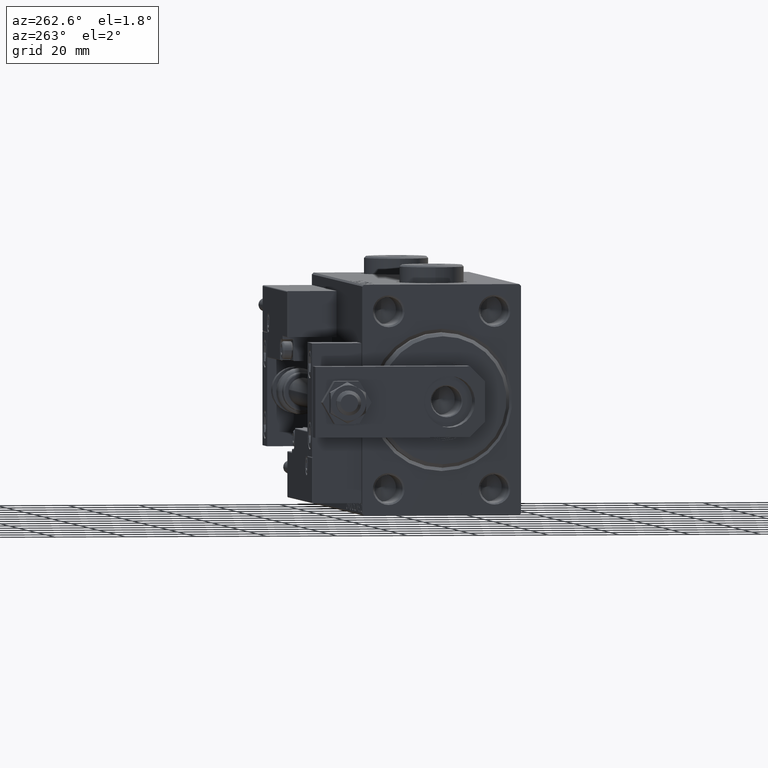
[diagram: clean part render]
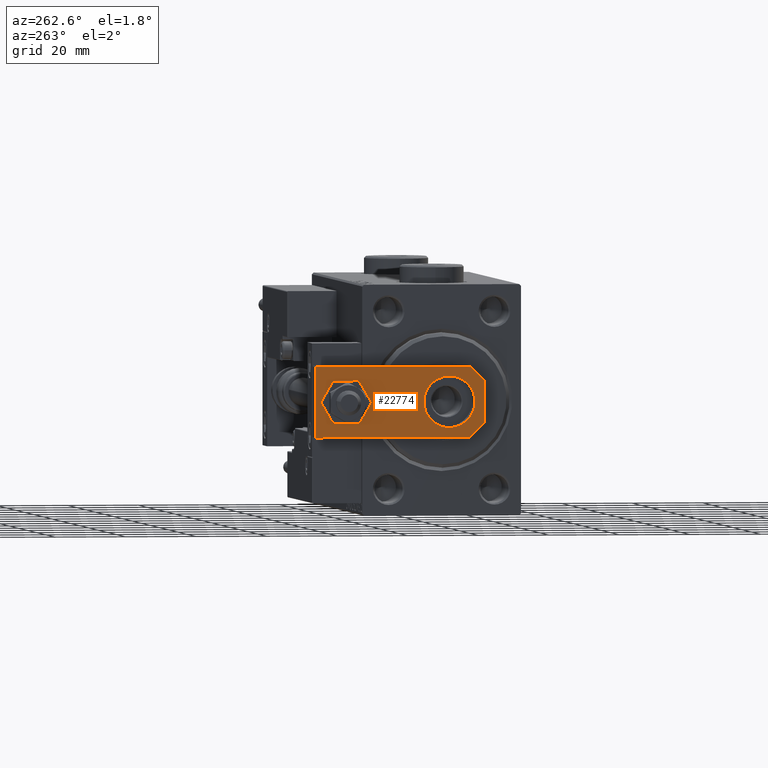
[diagram: same view with one face highlighted and labeled with its STEP entity id]
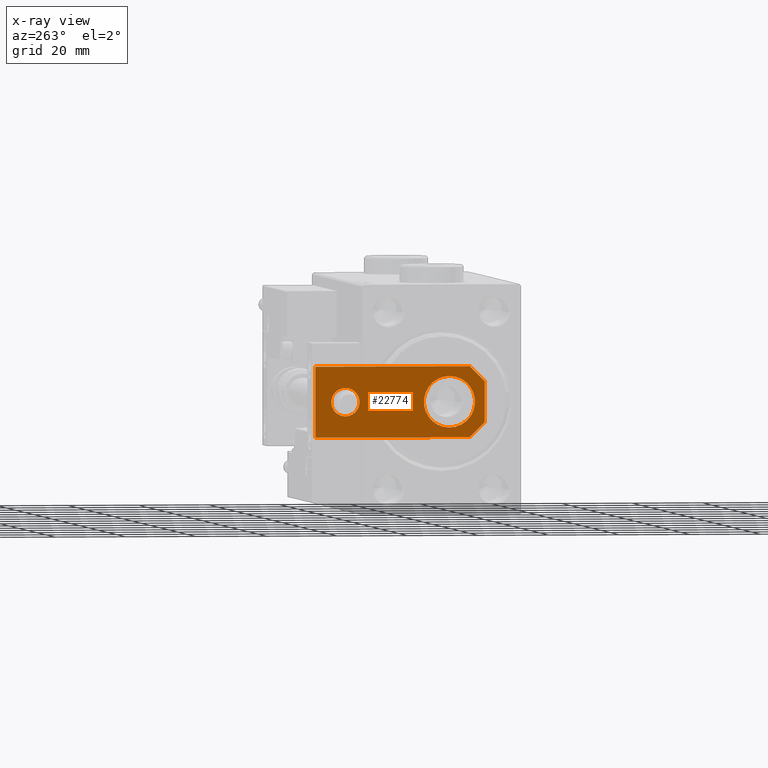
[diagram: x-ray of the same camera — body ghosted, the highlighted face saturated]
A machine part, auxiliary view. The second image highlights one B-rep face of the part: STEP entity #22774.
The next image is the same camera in x-ray: the body ghosted, the highlighted face saturated — about 0% of this face is hidden behind the body in this view.
In plain terms, the highlighted planar face has unit normal (-1, -0, 0).
Its self-contained STEP definition (entity closure, byte-faithful):
#97 = DIRECTION ( 'NONE',  ( 1.000000000000000000, 0.000000000000000000, 0.000000000000000000 ) ) ;
#1003 = ORIENTED_EDGE ( 'NONE', *, *, #10762, .F. ) ;
#2107 = CARTESIAN_POINT ( 'NONE',  ( -10.00000000000000000, 48.00000000000000000, 6.000000000000000000 ) ) ;
#3769 = CARTESIAN_POINT ( 'NONE',  ( -7.250000000000000000, 10.00000000000000178, 6.000000000000000000 ) ) ;
#3913 = VERTEX_POINT ( 'NONE', #45199 ) ;
#3920 = CARTESIAN_POINT ( 'NONE',  ( 10.00000000000000533, 0.000000000000000000, 6.000000000000000000 ) ) ;
#4192 = DIRECTION ( 'NONE',  ( 1.000000000000000000, 0.000000000000000000, 0.000000000000000000 ) ) ;
#4365 = ORIENTED_EDGE ( 'NONE', *, *, #20054, .T. ) ;
#4404 = EDGE_CURVE ( 'NONE', #49059, #42884, #6032, .T. ) ;
#4866 = DIRECTION ( 'NONE',  ( -0.000000000000000000, 0.000000000000000000, 1.000000000000000000 ) ) ;
#5492 = EDGE_LOOP ( 'NONE', ( #38811, #43082, #4365, #33993, #28521, #23125 ) ) ;
#5761 = AXIS2_PLACEMENT_3D ( 'NONE', #34646, #34913, #50848 ) ;
#6032 = CIRCLE ( 'NONE', #7761, 4.000000000000000888 ) ;
#6325 = EDGE_CURVE ( 'NONE', #7081, #21639, #49442, .T. ) ;
#6418 = LINE ( 'NONE', #51338, #39938 ) ;
#6993 = EDGE_CURVE ( 'NONE', #42884, #49059, #29014, .T. ) ;
#7081 = VERTEX_POINT ( 'NONE', #19491 ) ;
#7672 = AXIS2_PLACEMENT_3D ( 'NONE', #37162, #36365, #4192 ) ;
#7761 = AXIS2_PLACEMENT_3D ( 'NONE', #23504, #40500, #48480 ) ;
#7762 = LINE ( 'NONE', #11740, #19688 ) ;
#8791 = VECTOR ( 'NONE', #46461, 1000.000000000000114 ) ;
#9999 = ORIENTED_EDGE ( 'NONE', *, *, #21228, .F. ) ;
#10762 = EDGE_CURVE ( 'NONE', #25100, #3913, #27697, .T. ) ;
#11061 = VERTEX_POINT ( 'NONE', #21125 ) ;
#11740 = CARTESIAN_POINT ( 'NONE',  ( -2.880000000000006999, -2.879999999999998561, 6.000000000000000000 ) ) ;
#11788 = CARTESIAN_POINT ( 'NONE',  ( 0.000000000000000000, 0.000000000000000000, 6.000000000000000000 ) ) ;
#12930 = ORIENTED_EDGE ( 'NONE', *, *, #4404, .F. ) ;
#14007 = VERTEX_POINT ( 'NONE', #2107 ) ;
#15889 = EDGE_LOOP ( 'NONE', ( #12930, #48396 ) ) ;
#16326 = FACE_BOUND ( 'NONE', #15889, .T. ) ;
#16870 = CARTESIAN_POINT ( 'NONE',  ( 4.000000000000000888, 39.50000000000000000, 6.000000000000000000 ) ) ;
#17274 = CARTESIAN_POINT ( 'NONE',  ( 2.879999999999984350, -2.879999999999999005, 6.000000000000000000 ) ) ;
#19491 = CARTESIAN_POINT ( 'NONE',  ( 5.759999999999998010, 0.000000000000000000, 6.000000000000000000 ) ) ;
#19674 = EDGE_CURVE ( 'NONE', #11061, #14007, #24252, .T. ) ;
#19688 = VECTOR ( 'NONE', #23970, 999.9999999999998863 ) ;
#20054 = EDGE_CURVE ( 'NONE', #29012, #7081, #50922, .T. ) ;
#20302 = FACE_OUTER_BOUND ( 'NONE', #5492, .T. ) ;
#20545 = CARTESIAN_POINT ( 'NONE',  ( 10.00000000000000178, 48.00000000000000000, 6.000000000000000000 ) ) ;
#21125 = CARTESIAN_POINT ( 'NONE',  ( 10.00000000000000178, 48.00000000000000000, 6.000000000000000000 ) ) ;
#21228 = EDGE_CURVE ( 'NONE', #3913, #25100, #33137, .T. ) ;
#21639 = VERTEX_POINT ( 'NONE', #22899 ) ;
#22774 = ADVANCED_FACE ( 'NONE', ( #16326, #20302, #32798 ), #52454, .T. ) ;
#22899 = CARTESIAN_POINT ( 'NONE',  ( 10.00000000000000533, 4.239999999999986890, 6.000000000000000000 ) ) ;
#22996 = EDGE_CURVE ( 'NONE', #14007, #34474, #6418, .T. ) ;
#23125 = ORIENTED_EDGE ( 'NONE', *, *, #19674, .T. ) ;
#23504 = CARTESIAN_POINT ( 'NONE',  ( -1.432611055310774642E-16, 39.50000000000000000, 6.000000000000000000 ) ) ;
#23970 = DIRECTION ( 'NONE',  ( 0.7071067811865464625, -0.7071067811865486830, 0.000000000000000000 ) ) ;
#24252 = LINE ( 'NONE', #20545, #29640 ) ;
#25100 = VERTEX_POINT ( 'NONE', #3769 ) ;
#25184 = LINE ( 'NONE', #3920, #42644 ) ;
#26729 = DIRECTION ( 'NONE',  ( 1.000000000000000000, 0.000000000000000000, 0.000000000000000000 ) ) ;
#27443 = CARTESIAN_POINT ( 'NONE',  ( -9.629649721936179265E-32, 10.00000000000000178, 6.000000000000000000 ) ) ;
#27697 = CIRCLE ( 'NONE', #30286, 7.250000000000000000 ) ;
#28521 = ORIENTED_EDGE ( 'NONE', *, *, #47016, .T. ) ;
#29012 = VERTEX_POINT ( 'NONE', #35415 ) ;
#29014 = CIRCLE ( 'NONE', #5761, 4.000000000000000888 ) ;
#29198 = EDGE_CURVE ( 'NONE', #34474, #29012, #7762, .T. ) ;
#29640 = VECTOR ( 'NONE', #40467, 1000.000000000000000 ) ;
#30286 = AXIS2_PLACEMENT_3D ( 'NONE', #27443, #51891, #35943 ) ;
#30608 = AXIS2_PLACEMENT_3D ( 'NONE', #11788, #4866, #97 ) ;
#32207 = EDGE_LOOP ( 'NONE', ( #1003, #9999 ) ) ;
#32798 = FACE_BOUND ( 'NONE', #32207, .T. ) ;
#33137 = CIRCLE ( 'NONE', #7672, 7.250000000000000000 ) ;
#33993 = ORIENTED_EDGE ( 'NONE', *, *, #6325, .T. ) ;
#34474 = VERTEX_POINT ( 'NONE', #38611 ) ;
#34646 = CARTESIAN_POINT ( 'NONE',  ( -1.432611055310774642E-16, 39.50000000000000000, 6.000000000000000000 ) ) ;
#34913 = DIRECTION ( 'NONE',  ( 0.000000000000000000, 0.000000000000000000, 1.000000000000000000 ) ) ;
#35415 = CARTESIAN_POINT ( 'NONE',  ( -5.759999999999997122, 0.000000000000000000, 6.000000000000000000 ) ) ;
#35943 = DIRECTION ( 'NONE',  ( 1.000000000000000000, 0.000000000000000000, 0.000000000000000000 ) ) ;
#36365 = DIRECTION ( 'NONE',  ( 0.000000000000000000, 0.000000000000000000, 1.000000000000000000 ) ) ;
#37162 = CARTESIAN_POINT ( 'NONE',  ( -9.629649721936179265E-32, 10.00000000000000178, 6.000000000000000000 ) ) ;
#38442 = CARTESIAN_POINT ( 'NONE',  ( -10.00000000000000533, 0.000000000000000000, 6.000000000000000000 ) ) ;
#38611 = CARTESIAN_POINT ( 'NONE',  ( -10.00000000000000533, 4.240000000000021529, 6.000000000000000000 ) ) ;
#38811 = ORIENTED_EDGE ( 'NONE', *, *, #22996, .T. ) ;
#39938 = VECTOR ( 'NONE', #50808, 1000.000000000000000 ) ;
#40467 = DIRECTION ( 'NONE',  ( -1.000000000000000000, 0.000000000000000000, 0.000000000000000000 ) ) ;
#40500 = DIRECTION ( 'NONE',  ( 0.000000000000000000, 0.000000000000000000, 1.000000000000000000 ) ) ;
#42357 = VECTOR ( 'NONE', #26729, 1000.000000000000000 ) ;
#42644 = VECTOR ( 'NONE', #44844, 1000.000000000000000 ) ;
#42884 = VERTEX_POINT ( 'NONE', #16870 ) ;
#42892 = CARTESIAN_POINT ( 'NONE',  ( -4.000000000000000888, 39.50000000000000000, 6.000000000000000000 ) ) ;
#43082 = ORIENTED_EDGE ( 'NONE', *, *, #29198, .T. ) ;
#44844 = DIRECTION ( 'NONE',  ( -7.228014483236695816E-17, 1.000000000000000000, 0.000000000000000000 ) ) ;
#45199 = CARTESIAN_POINT ( 'NONE',  ( 7.250000000000000000, 10.00000000000000355, 6.000000000000000000 ) ) ;
#46461 = DIRECTION ( 'NONE',  ( 0.7071067811865492381, 0.7071067811865457964, -0.000000000000000000 ) ) ;
#47016 = EDGE_CURVE ( 'NONE', #21639, #11061, #25184, .T. ) ;
#48396 = ORIENTED_EDGE ( 'NONE', *, *, #6993, .F. ) ;
#48480 = DIRECTION ( 'NONE',  ( 1.000000000000000000, 0.000000000000000000, 0.000000000000000000 ) ) ;
#49059 = VERTEX_POINT ( 'NONE', #42892 ) ;
#49442 = LINE ( 'NONE', #17274, #8791 ) ;
#50808 = DIRECTION ( 'NONE',  ( -1.084202172485504434E-16, -1.000000000000000000, 0.000000000000000000 ) ) ;
#50848 = DIRECTION ( 'NONE',  ( 1.000000000000000000, 0.000000000000000000, 0.000000000000000000 ) ) ;
#50922 = LINE ( 'NONE', #38442, #42357 ) ;
#51338 = CARTESIAN_POINT ( 'NONE',  ( -10.00000000000000000, 48.00000000000000000, 6.000000000000000000 ) ) ;
#51891 = DIRECTION ( 'NONE',  ( 0.000000000000000000, 0.000000000000000000, 1.000000000000000000 ) ) ;
#52454 = PLANE ( 'NONE',  #30608 ) ;